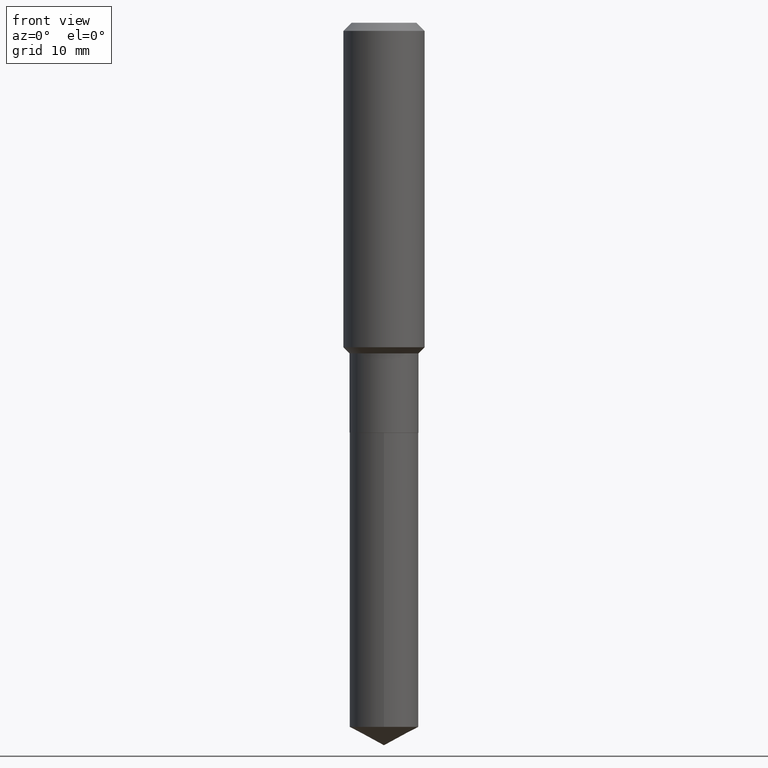
[diagram: clean part render]
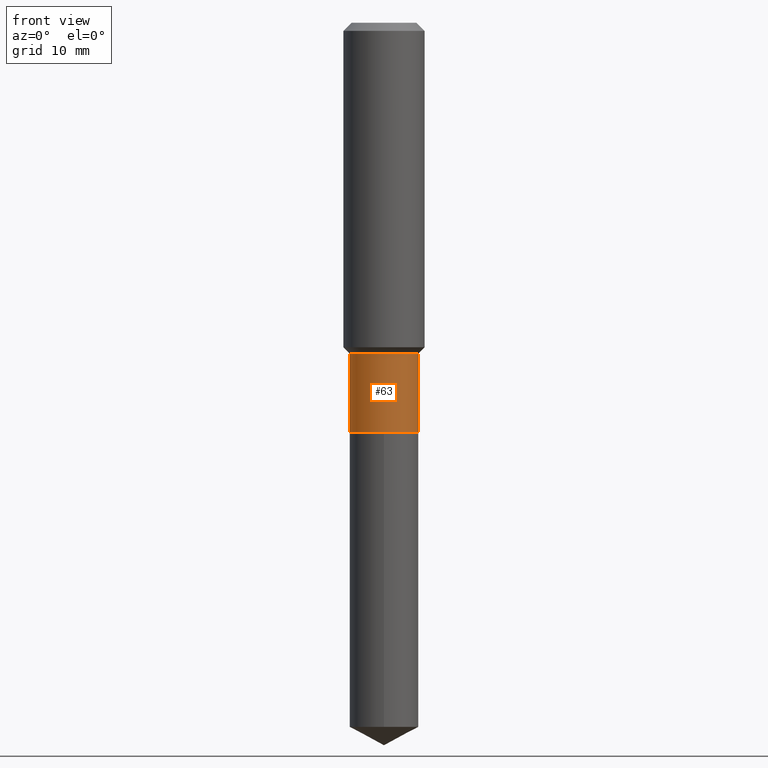
[diagram: same view with one face highlighted and labeled with its STEP entity id]
A machine part, front view. The second image highlights one B-rep face of the part: STEP entity #63.
In plain terms, the highlighted cylindrical surface (edge-blend (fillet) strip) has radius 4.2494 mm, axis along (-0, 0, 1).
Its self-contained STEP definition (entity closure, byte-faithful):
#2 = CARTESIAN_POINT ( 'NONE',  ( -0.1673000000000000043, 1.188737996926647641E-15, -8.229378405996457551E-30 ) ) ;
#3 = VECTOR ( 'NONE', #41, 39.37007874015748143 ) ;
#6 = DIRECTION ( 'NONE',  ( -2.445468806185136877E-29, 3.491481338843145188E-15, 1.000000000000000000 ) ) ;
#10 = CARTESIAN_POINT ( 'NONE',  ( -0.1672999999999999765, -5.080042172899276832E-15, -1.603299999999999725 ) ) ;
#28 = VECTOR ( 'NONE', #6, 39.37007874015748143 ) ;
#29 = CARTESIAN_POINT ( 'NONE',  ( -0.1673000000000000043, -5.080042172899276832E-15, -1.987599999999999811 ) ) ;
#41 = DIRECTION ( 'NONE',  ( -2.445468806185136877E-29, 3.491481338843145188E-15, 1.000000000000000000 ) ) ;
#48 = AXIS2_PLACEMENT_3D ( 'NONE', #360, #271, #315 ) ;
#63 = ADVANCED_FACE ( 'NONE', ( #207 ), #374, .T. ) ;
#64 = EDGE_CURVE ( 'NONE', #134, #480, #350, .T. ) ;
#72 = EDGE_CURVE ( 'NONE', #134, #309, #290, .T. ) ;
#98 = ORIENTED_EDGE ( 'NONE', *, *, #64, .F. ) ;
#134 = VERTEX_POINT ( 'NONE', #29 ) ;
#140 = DIRECTION ( 'NONE',  ( -2.445468806185136597E-29, 3.491481338843145583E-15, 1.000000000000000000 ) ) ;
#149 = ORIENTED_EDGE ( 'NONE', *, *, #340, .T. ) ;
#164 = DIRECTION ( 'NONE',  ( 1.000000000000000000, -6.982962677686269866E-15, 0.000000000000000000 ) ) ;
#204 = DIRECTION ( 'NONE',  ( -2.445468806185136597E-29, 3.491481338843145583E-15, 1.000000000000000000 ) ) ;
#207 = FACE_OUTER_BOUND ( 'NONE', #486, .T. ) ;
#210 = DIRECTION ( 'NONE',  ( 1.000000000000000000, -6.982962677686266711E-15, 4.876176775795936353E-29 ) ) ;
#260 = AXIS2_PLACEMENT_3D ( 'NONE', #270, #140, #164 ) ;
#270 = CARTESIAN_POINT ( 'NONE',  ( 4.860613799173576986E-29, -6.939668309084635510E-15, -1.987599999999999811 ) ) ;
#271 = DIRECTION ( 'NONE',  ( -2.445468806185136597E-29, 3.491481338843145583E-15, 1.000000000000000000 ) ) ;
#290 = CIRCLE ( 'NONE', #260, 0.1673000000000000043 ) ;
#306 = EDGE_CURVE ( 'NONE', #480, #487, #336, .T. ) ;
#309 = VERTEX_POINT ( 'NONE', #310 ) ;
#310 = CARTESIAN_POINT ( 'NONE',  ( 0.1673000000000000043, -8.107917965061548297E-15, -1.987599999999999811 ) ) ;
#315 = DIRECTION ( 'NONE',  ( 1.000000000000000000, -6.982962677686265133E-15, 0.000000000000000000 ) ) ;
#322 = CARTESIAN_POINT ( 'NONE',  ( 0.000000000000000000, 0.000000000000000000, 0.000000000000000000 ) ) ;
#335 = ORIENTED_EDGE ( 'NONE', *, *, #306, .F. ) ;
#336 = CIRCLE ( 'NONE', #48, 0.1672999999999999765 ) ;
#340 = EDGE_CURVE ( 'NONE', #309, #487, #485, .T. ) ;
#350 = LINE ( 'NONE', #2, #3 ) ;
#360 = CARTESIAN_POINT ( 'NONE',  ( 3.920820136956629027E-29, -5.597892030567214225E-15, -1.603299999999999725 ) ) ;
#374 = CYLINDRICAL_SURFACE ( 'NONE', #403, 0.1673000000000000043 ) ;
#403 = AXIS2_PLACEMENT_3D ( 'NONE', #322, #204, #210 ) ;
#423 = CARTESIAN_POINT ( 'NONE',  ( 0.1673000000000000043, -1.168249655976912392E-15, 8.157843745906601613E-30 ) ) ;
#433 = CARTESIAN_POINT ( 'NONE',  ( 0.1672999999999999765, -6.766141686544126223E-15, -1.603299999999999725 ) ) ;
#449 = ORIENTED_EDGE ( 'NONE', *, *, #72, .T. ) ;
#480 = VERTEX_POINT ( 'NONE', #10 ) ;
#485 = LINE ( 'NONE', #423, #28 ) ;
#486 = EDGE_LOOP ( 'NONE', ( #98, #449, #149, #335 ) ) ;
#487 = VERTEX_POINT ( 'NONE', #433 ) ;